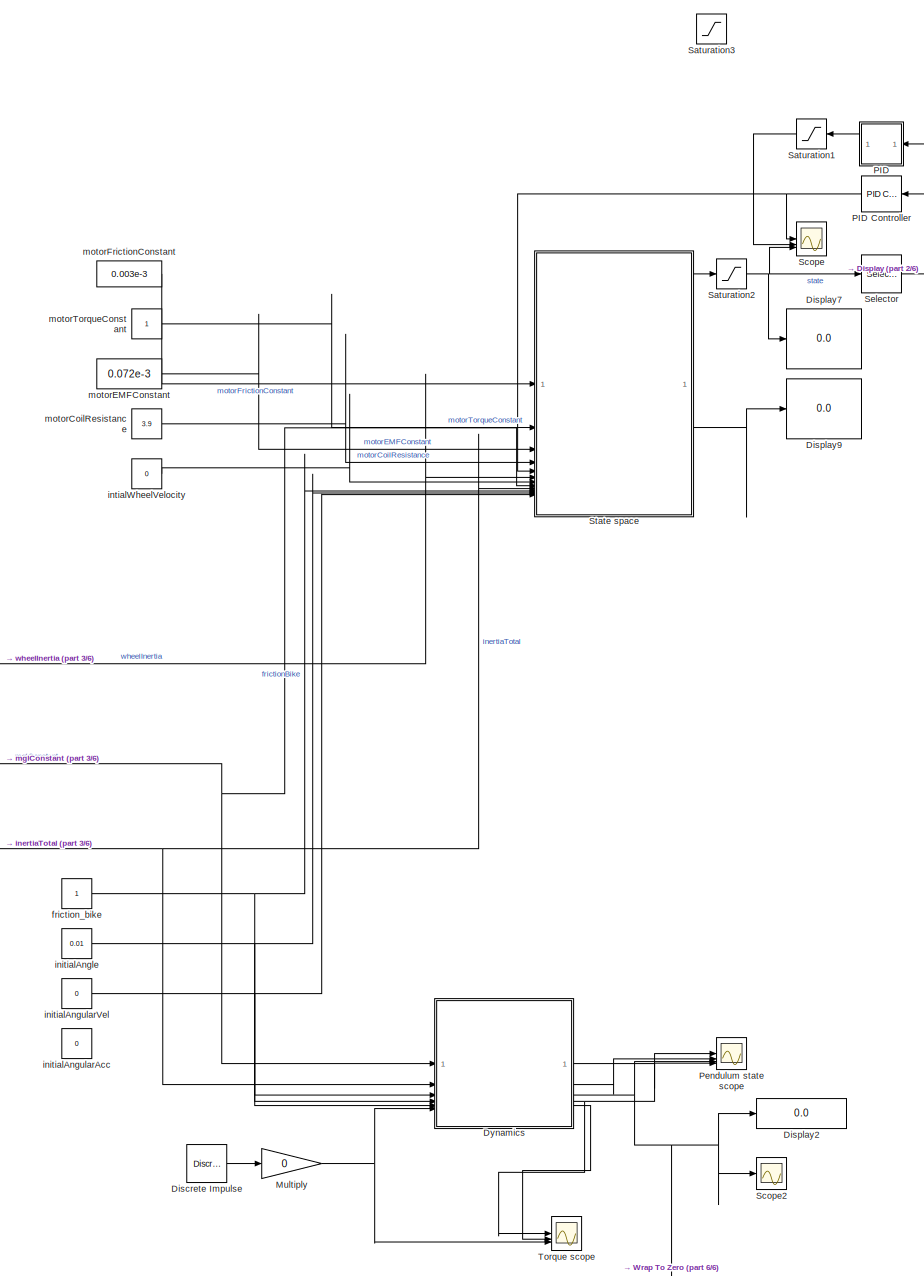
[diagram: root canvas - part 1/6, center side, full height]
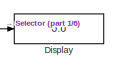
[diagram: root canvas - part 2/6, top right region]
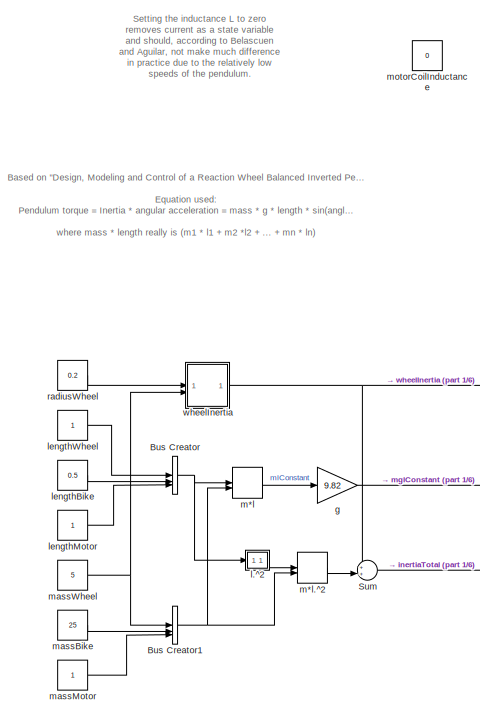
[diagram: root canvas - part 3/6, central region]
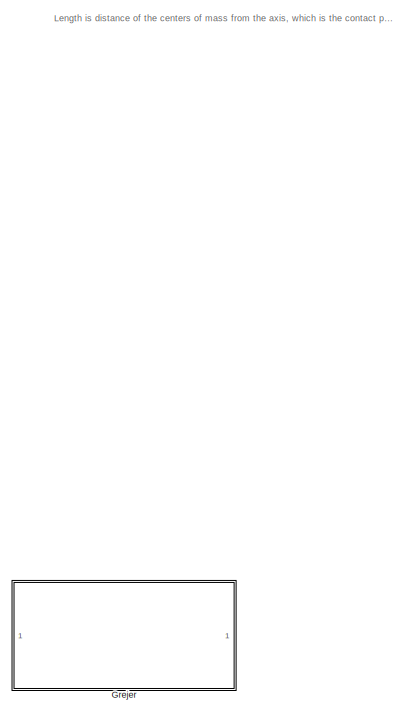
[diagram: root canvas - part 4/6, middle left region]
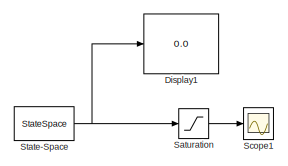
[diagram: root canvas - part 5/6, bottom right region]
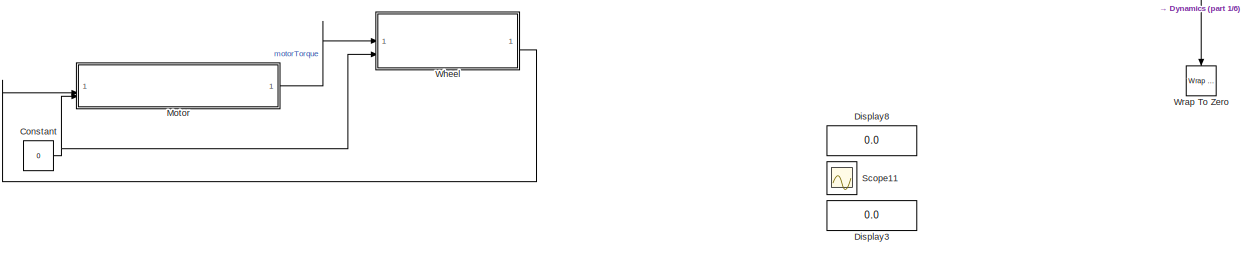
[diagram: root canvas - part 6/6, bottom center region]
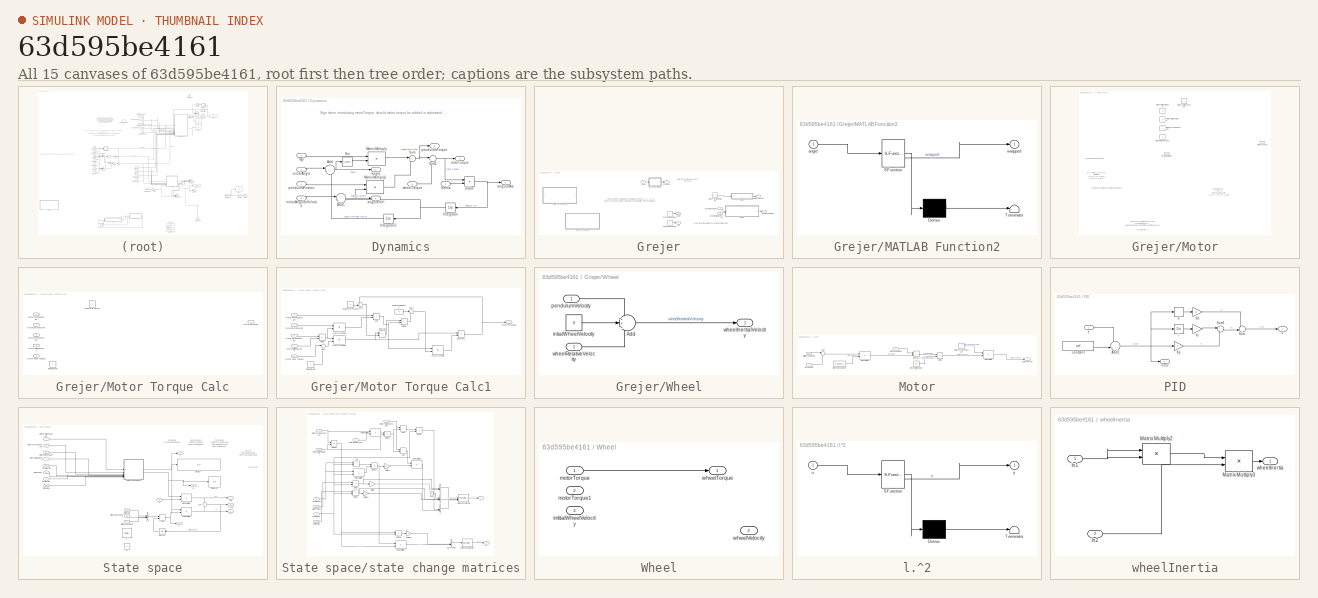
[diagram: thumbnail index - all 15 canvases of the model, root first then tree order]
MODEL slx_63d595be4161
KIND model
CONFIG AbsTol = auto
CONFIG EnableMultiTasking = off
CONFIG FixedStep = auto
CONFIG MaxStep = auto
CONFIG MinStep = auto
CONFIG RelTol = 1e-3
CONFIG SampleTimeConstraint = Unconstrained
CONFIG SolverName = VariableStepAuto
CONFIG StartTime = 0.0
CONFIG StopTime = 60
BLOCK [BusCreator] Bus Creator
  DisplayOption = bar
  InheritFromInputs = on
  Inputs = 3
BLOCK [BusCreator] Bus Creator1
  DisplayOption = bar
  InheritFromInputs = on
  Inputs = 3
BLOCK [Constant] Constant
  Commented = on
  Value = 0
BLOCK [Reference] Discrete Impulse  REF=dspsrcs4/Discrete 
Impulse
  SourceBlock = dspsrcs4/Discrete \nImpulse
  SourceType = Discrete Impulse
BLOCK [Display] Display
  Decimation = 1
BLOCK [Display] Display1
  Decimation = 1
BLOCK [Display] Display2
  Decimation = 1
BLOCK [Display] Display3
  Decimation = 1
  NameLocation = top
BLOCK [Display] Display7
  Decimation = 1
BLOCK [Display] Display8
  Decimation = 1
  NameLocation = top
BLOCK [Display] Display9
  Decimation = 1
BLOCK [SubSystem] Dynamics
BLOCK [Sum] Dynamics/Add
  Inputs = |++
BLOCK [Sum] Dynamics/Add1
  Inputs = |++
BLOCK [Product] Dynamics/Divide
  Inputs = */
BLOCK [Inport] Dynamics/Inertia
  Port = 2
BLOCK [Integrator] Dynamics/Integrator
BLOCK [Integrator] Dynamics/Integrator1
BLOCK [Product] Dynamics/Matrix Multiply
  Multiplication = Matrix(*)
BLOCK [Product] Dynamics/Matrix Multiply1
  Multiplication = Matrix(*)
BLOCK [Trigonometry] Dynamics/Sin
BLOCK [Sum] Dynamics/Sum
  Inputs = |+-
BLOCK [Sum] Dynamics/Sum1
  Inputs = |+-
BLOCK [Outport] Dynamics/angle
  Port = 3
BLOCK [Outport] Dynamics/angularAcc
BLOCK [Outport] Dynamics/angularVel
  Port = 2
BLOCK [Inport] Dynamics/initialAngle
  Port = 4
BLOCK [Inport] Dynamics/initialAngularVelocity
  Port = 5
BLOCK [Inport] Dynamics/mgl
BLOCK [Inport] Dynamics/pendulumFriction
  Port = 3
BLOCK [Outport] Dynamics/pendulumTorque
  Port = 5
BLOCK [Outport] Dynamics/totalTorque
  Port = 4
BLOCK [Inport] Dynamics/wheelTorque
  Port = 6
BLOCK [SubSystem] Grejer
  Commented = on
BLOCK [SubSystem] Grejer/MATLAB Function2
  ErrorFcn = Stateflow.Translate.translate
  LibrarySourceBlock = simulink/User-Defined\nFunctions/MATLAB Function
  PermitHierarchicalResolution = ExplicitOnly
  SFBlockType = MATLAB Function
  TreatAsAtomicUnit = on
BLOCK [Demux] Grejer/MATLAB Function2/ Demux 
  Outputs = 1
BLOCK [S-Function] Grejer/MATLAB Function2/ SFunction 
  EnableBusSupport = on
  FunctionName = sf_sfun
  PortCounts = [1 2]
  SFcnIsStateOwnerBlock = off
  SFunctionDeploymentMode = off
  Tag = Stateflow S-Function 4
BLOCK [Terminator] Grejer/MATLAB Function2/ Terminator 
BLOCK [Inport] Grejer/MATLAB Function2/angle
BLOCK [Outport] Grejer/MATLAB Function2/wrapped
BLOCK [SubSystem] Grejer/Motor
BLOCK [SubSystem] Grejer/Motor Torque Calc
BLOCK [Constant] Grejer/Motor Torque Calc/initialVoltage
  Value = 0
BLOCK [Constant] Grejer/Motor Torque Calc/intialMotorTorque
  Value = 0
BLOCK [Inport] Grejer/Motor Torque Calc/motor input voltage
  NameLocation = top
  Port = 5
BLOCK [Inport] Grejer/Motor Torque Calc/motorCoilResistance
  Port = 4
BLOCK [Inport] Grejer/Motor Torque Calc/motorEMFConstant
  Port = 2
BLOCK [Inport] Grejer/Motor Torque Calc/motorFrictionConstant
BLOCK [Inport] Grejer/Motor Torque Calc/motorTorqueConstant
  Port = 3
BLOCK [Outport] Grejer/Motor Torque Calc/motorTorqueOut
BLOCK [SubSystem] Grejer/Motor Torque Calc1
BLOCK [Sum] Grejer/Motor Torque Calc1/Add1
  IconShape = rectangular
BLOCK [Product] Grejer/Motor Torque Calc1/Divide
  Inputs = */
BLOCK [Product] Grejer/Motor Torque Calc1/Divide1
  Inputs = */
BLOCK [Product] Grejer/Motor Torque Calc1/Matrix Multiply
  Multiplication = Matrix(*)
BLOCK [Product] Grejer/Motor Torque Calc1/Matrix Multiply1
  Multiplication = Matrix(*)
BLOCK [Product] Grejer/Motor Torque Calc1/Matrix Multiply2
  Multiplication = Matrix(*)
BLOCK [Sum] Grejer/Motor Torque Calc1/Subtract
  IconShape = rectangular
  Inputs = +-
BLOCK [Sum] Grejer/Motor Torque Calc1/Subtract1
  IconShape = rectangular
  Inputs = +-
BLOCK [Sum] Grejer/Motor Torque Calc1/Sum
  Inputs = |++
BLOCK [Sum] Grejer/Motor Torque Calc1/Sum1
  Inputs = |++
BLOCK [Sum] Grejer/Motor Torque Calc1/Sum2
  Inputs = ++|
BLOCK [Constant] Grejer/Motor Torque Calc1/initialVoltage
  Value = 0
BLOCK [Constant] Grejer/Motor Torque Calc1/intialMotorTorque
  Value = 0
BLOCK [Constant] Grejer/Motor Torque Calc1/intialWheelVelocity2
  Value = 0
BLOCK [Inport] Grejer/Motor Torque Calc1/motor input voltage
  NameLocation = top
  Port = 5
BLOCK [Inport] Grejer/Motor Torque Calc1/motorCoilResistance
  Port = 4
BLOCK [Inport] Grejer/Motor Torque Calc1/motorEMFConstant
  Port = 2
BLOCK [Inport] Grejer/Motor Torque Calc1/motorFrictionConstant
BLOCK [Inport] Grejer/Motor Torque Calc1/motorTorqueConstant
  Port = 3
BLOCK [Outport] Grejer/Motor Torque Calc1/motorTorqueOut
BLOCK [Constant] Grejer/Motor/motorCoilInductance
BLOCK [Constant] Grejer/Motor/motorCoilResistance
BLOCK [Constant] Grejer/Motor/motorEMFConstant
BLOCK [Constant] Grejer/Motor/motorFrictionConstant
BLOCK [Outport] Grejer/Motor/motorTorque
BLOCK [Constant] Grejer/Motor/motorTorqueConstant
BLOCK [Inport] Grejer/Motor/terminalVoltage
BLOCK [Outport] Grejer/Out4
  Port = 4
BLOCK [Outport] Grejer/Out5
  Port = 5
BLOCK [SubSystem] Grejer/Wheel
BLOCK [Sum] Grejer/Wheel/Add
  Inputs = +++
BLOCK [Constant] Grejer/Wheel/intialWheelVelocity
  Value = 0
BLOCK [Inport] Grejer/Wheel/pendulumVelocity
BLOCK [Outport] Grejer/Wheel/wheelInertialVelocity
BLOCK [Inport] Grejer/Wheel/wheelRelativeVelocity
  Port = 2
BLOCK [Inport] Grejer/angle
BLOCK [Constant] Grejer/innerRadiusWheel
BLOCK [Constant] Grejer/motorTerminalVoltage
BLOCK [Outport] Grejer/motorTorque
  Port = 2
BLOCK [Constant] Grejer/outerRadiusWheel
BLOCK [Inport] Grejer/pendulumVelocity
  Port = 2
BLOCK [Outport] Grejer/wheelInertialVelocity
  Port = 3
BLOCK [Inport] Grejer/wheelRelativeVelocity
  Port = 3
BLOCK [Outport] Grejer/wrapped
BLOCK [SubSystem] Motor
  Commented = on
BLOCK [Product] Motor/Divide
  Inputs = */
BLOCK [Product] Motor/Matrix Multiply
  Multiplication = Matrix(*)
BLOCK [Product] Motor/Matrix Multiply1
  Multiplication = Matrix(*)
BLOCK [Sum] Motor/Subtract
  IconShape = rectangular
  Inputs = +-
BLOCK [Sum] Motor/Sum
  Inputs = |++
BLOCK [Inport] Motor/initialWheelVelocity
  Port = 3
BLOCK [Inport] Motor/motor input voltage
BLOCK [Constant] Motor/motorCoilResistance
  Value = 3.9
BLOCK [Constant] Motor/motorEMFConstant
  Value = 0.072e-3
BLOCK [Outport] Motor/motorTorque
BLOCK [Constant] Motor/motorTorqueConstant
BLOCK [Inport] Motor/wheelVelocity
  NameLocation = top
  Port = 2
BLOCK [Gain] Multiply
  Gain = 0
BLOCK [SubSystem] PID
  NameLocation = top
BLOCK [Reference] PID Controller  REF=slpidlib/PID Controller
  LibrarySourceBlock = simulink/Continuous/PID Controller
  NameLocation = top
  SourceBlock = slpidlib/PID Controller
  SourceType = PID 1dof
BLOCK [Sum] PID/Add2
  Inputs = -+|
BLOCK [Constant] PID/Constant
  Value = ref
BLOCK [Gain] PID/Kd
  Gain = D
BLOCK [Gain] PID/Ki
  Gain = I
BLOCK [Gain] PID/Kp
  Gain = P
BLOCK [Sum] PID/Sum
  Inputs = --|
BLOCK [Sum] PID/Sum1
  Inputs = |++
BLOCK [Derivative] PID/d
BLOCK [Outport] PID/error
  Port = 2
BLOCK [Integrator] PID/i
BLOCK [Outport] PID/u
BLOCK [Inport] PID/y
BLOCK [Scope] Pendulum state scope
  Floating = off
  NumInputPorts = 4
  ScopeSpecificationString = Simulink.scopes.TimeScopeBlockCfg('CurrentConfiguration', extmgr.ConfigurationSet(extmgr.Configuration('Core','General UI',true),extmgr.Configuration('Core','Source UI',true),extmgr.Configuration('Sources','WiredSimulink',true,'DataLoggingVariableName','ScopeData4'),extmgr.Configuration('Visuals','Time Domain',true,'SerializedDisplays',{struct('MinYLimReal','-233.27651','MaxYLimReal','232.78777','...<+1623ch>
BLOCK [Saturate] Saturation
  LowerLimit = -1000
  UpperLimit = 1000
BLOCK [Saturate] Saturation1
  LowerLimit = -24
  NameLocation = top
  UpperLimit = 24
BLOCK [Saturate] Saturation2
  LowerLimit = -10000
  UpperLimit = 10000
BLOCK [Saturate] Saturation3
  LowerLimit = -24
  NameLocation = top
  UpperLimit = 24
BLOCK [Scope] Scope
  Floating = off
  NumInputPorts = 3
  ScopeSpecificationString = Simulink.scopes.TimeScopeBlockCfg('CurrentConfiguration', extmgr.ConfigurationSet(extmgr.Configuration('Core','General UI',true),extmgr.Configuration('Core','Source UI',true),extmgr.Configuration('Sources','WiredSimulink',true,'DataLoggingVariableName','ScopeData1'),extmgr.Configuration('Visuals','Time Domain',true,'SerializedDisplays',{struct('MinYLimReal','-1339.28571','MaxYLimReal','704.36508',...<+1597ch>
BLOCK [Scope] Scope1
  Floating = off
  NumInputPorts = 1
  ScopeSpecificationString = Simulink.scopes.TimeScopeBlockCfg('CurrentConfiguration', extmgr.ConfigurationSet(extmgr.Configuration('Core','General UI',true),extmgr.Configuration('Core','Source UI',true),extmgr.Configuration('Sources','WiredSimulink',true,'DataLoggingVariableName','ScopeData2'),extmgr.Configuration('Visuals','Time Domain',true,'SerializedDisplays',{struct('MinYLimReal','-1250.00000','MaxYLimReal','1250.00000'...<+1537ch>
BLOCK [Scope] Scope11
  Floating = off
  NameLocation = top
  NumInputPorts = 2
  ScopeSpecificationString = Simulink.scopes.TimeScopeBlockCfg('CurrentConfiguration', extmgr.ConfigurationSet(extmgr.Configuration('Core','General UI',true),extmgr.Configuration('Core','Source UI',true),extmgr.Configuration('Sources','WiredSimulink',true,'DataLoggingVariableName','ScopeData6'),extmgr.Configuration('Visuals','Time Domain',true,'SerializedDisplays',{struct('MinYLimReal','-6.91203','MaxYLimReal','-0.62354','YLa...<+1478ch>
BLOCK [Scope] Scope2
  Floating = off
  NumInputPorts = 1
  ScopeSpecificationString = Simulink.scopes.TimeScopeBlockCfg('CurrentConfiguration', extmgr.ConfigurationSet(extmgr.Configuration('Core','General UI',true),extmgr.Configuration('Core','Source UI',true),extmgr.Configuration('Sources','WiredSimulink',true,'DataLoggingVariableName','ScopeData1'),extmgr.Configuration('Visuals','Time Domain',true,'SerializedDisplays',{struct('MinYLimReal','-1250.00000','MaxYLimReal','1250.00000'...<+1537ch>
BLOCK [Selector] Selector
  IndexOptions = Index vector (dialog)
  Indices = 1
  InputPortWidth = 3
  OutputSizes = 1
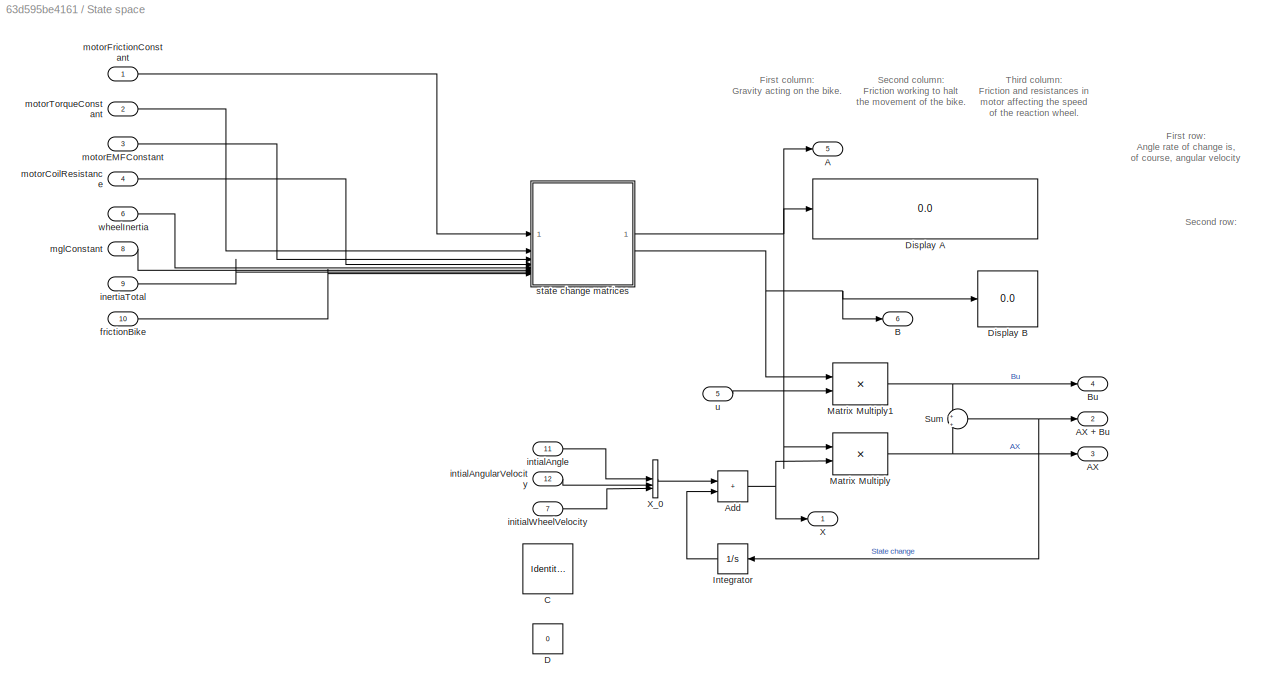
BLOCK [SubSystem] State space
BLOCK [Outport] State space/A
  Port = 5
BLOCK [Outport] State space/AX
  Port = 3
BLOCK [Outport] State space/AX + Bu
  Port = 2
BLOCK [Sum] State space/Add
  IconShape = rectangular
BLOCK [Outport] State space/B
  Port = 6
BLOCK [Outport] State space/Bu
  Port = 4
BLOCK [IdentityMatrix] State space/C
  OutputDimensions = 3
BLOCK [Constant] State space/D
  Value = 0
BLOCK [Display] State space/Display A
  Decimation = 1
BLOCK [Display] State space/Display B
  Decimation = 1
BLOCK [Integrator] State space/Integrator
BLOCK [Product] State space/Matrix Multiply
  Multiplication = Matrix(*)
BLOCK [Product] State space/Matrix Multiply1
  Multiplication = Matrix(*)
BLOCK [Sum] State space/Sum
  Inputs = +|+
BLOCK [Outport] State space/X
BLOCK [BusCreator] State space/X_0
  DisplayOption = bar
  InheritFromInputs = on
  Inputs = 3
BLOCK [Inport] State space/frictionBike
  Port = 10
BLOCK [Inport] State space/inertiaTotal
  Port = 9
BLOCK [Inport] State space/initialWheelVelocity
  Port = 7
BLOCK [Inport] State space/intialAngle
  Port = 11
BLOCK [Inport] State space/intialAngularVelocity
  Port = 12
BLOCK [Inport] State space/mglConstant
  Port = 8
BLOCK [Inport] State space/motorCoilResistance
  Port = 4
BLOCK [Inport] State space/motorEMFConstant
  Port = 3
BLOCK [Inport] State space/motorFrictionConstant
BLOCK [Inport] State space/motorTorqueConstant
  Port = 2
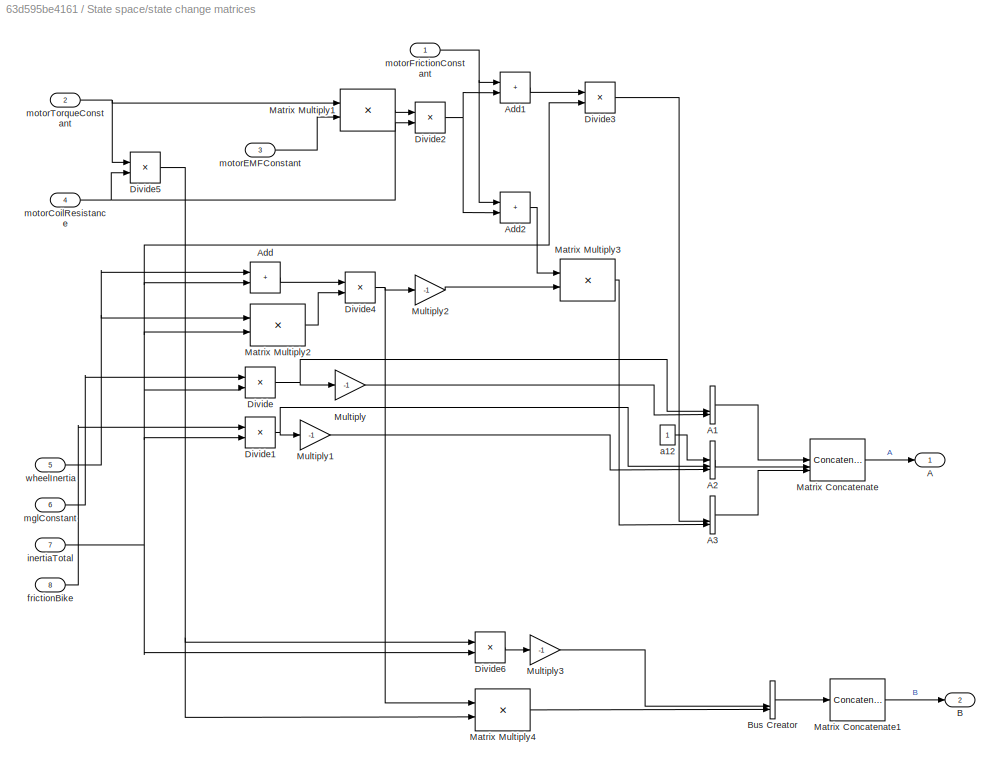
BLOCK [SubSystem] State space/state change matrices
BLOCK [Outport] State space/state change matrices/A
BLOCK [BusCreator] State space/state change matrices/A1
  DisplayOption = bar
  InheritFromInputs = on
  Inputs = 3
BLOCK [BusCreator] State space/state change matrices/A2
  DisplayOption = bar
  InheritFromInputs = on
  Inputs = 3
BLOCK [BusCreator] State space/state change matrices/A3
  DisplayOption = bar
  InheritFromInputs = on
  Inputs = 3
BLOCK [Sum] State space/state change matrices/Add
  IconShape = rectangular
BLOCK [Sum] State space/state change matrices/Add1
  IconShape = rectangular
BLOCK [Sum] State space/state change matrices/Add2
  IconShape = rectangular
BLOCK [Outport] State space/state change matrices/B
  Port = 2
BLOCK [BusCreator] State space/state change matrices/Bus Creator
  DisplayOption = bar
  InheritFromInputs = on
  Inputs = 3
BLOCK [Product] State space/state change matrices/Divide
  Inputs = */
BLOCK [Product] State space/state change matrices/Divide1
  Inputs = */
BLOCK [Product] State space/state change matrices/Divide2
  Inputs = */
BLOCK [Product] State space/state change matrices/Divide3
  Inputs = */
BLOCK [Product] State space/state change matrices/Divide4
  Inputs = */
BLOCK [Product] State space/state change matrices/Divide5
  Inputs = */
BLOCK [Product] State space/state change matrices/Divide6
  Inputs = */
BLOCK [Concatenate] State space/state change matrices/Matrix Concatenate
  ConcatenateDimension = 2
  Mode = Multidimensional array
  NumInputs = 3
BLOCK [Concatenate] State space/state change matrices/Matrix Concatenate1
  ConcatenateDimension = 2
  Mode = Multidimensional array
  NumInputs = 1
BLOCK [Product] State space/state change matrices/Matrix Multiply1
  Multiplication = Matrix(*)
BLOCK [Product] State space/state change matrices/Matrix Multiply2
  Multiplication = Matrix(*)
BLOCK [Product] State space/state change matrices/Matrix Multiply3
  Multiplication = Matrix(*)
BLOCK [Product] State space/state change matrices/Matrix Multiply4
  Multiplication = Matrix(*)
BLOCK [Gain] State space/state change matrices/Multiply
  Gain = -1
BLOCK [Gain] State space/state change matrices/Multiply1
  Gain = -1
BLOCK [Gain] State space/state change matrices/Multiply2
  Gain = -1
BLOCK [Gain] State space/state change matrices/Multiply3
  Gain = -1
BLOCK [Constant] State space/state change matrices/a12
BLOCK [Inport] State space/state change matrices/frictionBike
  Port = 8
BLOCK [Inport] State space/state change matrices/inertiaTotal
  Port = 7
BLOCK [Inport] State space/state change matrices/mglConstant
  Port = 6
BLOCK [Inport] State space/state change matrices/motorCoilResistance
  Port = 4
BLOCK [Inport] State space/state change matrices/motorEMFConstant
  Port = 3
BLOCK [Inport] State space/state change matrices/motorFrictionConstant
BLOCK [Inport] State space/state change matrices/motorTorqueConstant
  Port = 2
BLOCK [Inport] State space/state change matrices/wheelInertia
  Port = 5
BLOCK [Inport] State space/u
  Port = 5
BLOCK [Inport] State space/wheelInertia
  Port = 6
BLOCK [StateSpace] State-Space
  A = [0 1 0; 14.59 0.4016 0.08032; -14.59 -0.4016 -5.08]
  B = [0;-0.0206;1.303]
  C = eye(3)
  D = [0;0;0]
  InitialCondition = [0.00;0;0]
BLOCK [Sum] Sum
  Inputs = ++|
BLOCK [Scope] Torque scope
  Floating = off
  NumInputPorts = 3
  ScopeSpecificationString = Simulink.scopes.TimeScopeBlockCfg('CurrentConfiguration', extmgr.ConfigurationSet(extmgr.Configuration('Core','General UI',true),extmgr.Configuration('Core','Source UI',true),extmgr.Configuration('Sources','WiredSimulink',true,'DataLoggingVariableName','ScopeData1'),extmgr.Configuration('Visuals','Time Domain',true,'SerializedDisplays',{struct('MinYLimReal','-236.60931','MaxYLimReal','235.29943','...<+1551ch>
BLOCK [SubSystem] Wheel
  Commented = on
BLOCK [Inport] Wheel/intitialWheelVelocity
  Port = 3
BLOCK [Inport] Wheel/motorTorque
BLOCK [Inport] Wheel/motorTorque1
  Port = 2
BLOCK [Outport] Wheel/wheelTorque
BLOCK [Outport] Wheel/wheelVelocity
  Port = 2
BLOCK [Reference] Wrap To Zero  REF=simulink/Discontinuities/Wrap To Zero
  NameLocation = left
  SourceBlock = simulink/Discontinuities/Wrap To Zero
  SourceType = Wrap To Zero
BLOCK [Constant] friction_bike
BLOCK [Gain] g
  Gain = 9.82
BLOCK [Constant] initialAngle
  Value = 0.01
BLOCK [Constant] initialAngularAcc
  Value = 0
BLOCK [Constant] initialAngularVel
  Value = 0
BLOCK [Constant] intialWheelVelocity
  Value = 0
BLOCK [SubSystem] l.^2
  ErrorFcn = Stateflow.Translate.translate
  LibrarySourceBlock = simulink/User-Defined\nFunctions/MATLAB Function
  PermitHierarchicalResolution = ExplicitOnly
  SFBlockType = MATLAB Function
  TreatAsAtomicUnit = on
BLOCK [Demux] l.^2/ Demux 
  Outputs = 1
BLOCK [S-Function] l.^2/ SFunction 
  EnableBusSupport = on
  FunctionName = sf_sfun
  PortCounts = [1 2]
  SFcnIsStateOwnerBlock = off
  SFunctionDeploymentMode = off
  Tag = Stateflow S-Function 2
BLOCK [Terminator] l.^2/ Terminator 
BLOCK [Inport] l.^2/u
BLOCK [Outport] l.^2/y
BLOCK [Constant] lengthBike
  Value = 0.5
BLOCK [Constant] lengthMotor
BLOCK [Constant] lengthWheel
BLOCK [DotProduct] m*l
  OutDataTypeStr = Inherit: Inherit via internal rule
BLOCK [DotProduct] m*l.^2
  OutDataTypeStr = Inherit: Inherit via internal rule
BLOCK [Constant] massBike
  Value = 25
BLOCK [Constant] massMotor
BLOCK [Constant] massWheel
  Value = 5
BLOCK [Constant] motorCoilInductance
  Commented = on
  Value = 0
BLOCK [Constant] motorCoilResistance
  Value = 3.9
BLOCK [Constant] motorEMFConstant
  Value = 0.072e-3
BLOCK [Constant] motorFrictionConstant
  Value = 0.003e-3
BLOCK [Constant] motorTorqueConstant
BLOCK [Constant] radiusWheel
  Value = 0.2
BLOCK [SubSystem] wheelInertia
BLOCK [Inport] wheelInertia/In1
BLOCK [Inport] wheelInertia/In2
  Port = 2
BLOCK [Product] wheelInertia/Matrix Multiply2
  Multiplication = Matrix(*)
BLOCK [Product] wheelInertia/Matrix Multiply3
  Multiplication = Matrix(*)
BLOCK [Outport] wheelInertia/wheelInertia
ANNOTATION (root): Based on "Design, Modeling and Control of a Reaction Wheel Balanced Inverted Pendulum" by Gonzalo Belascuen and Nahuel Aguilar, available at IEEE Xplore. Equation used: Pendulum torque = Inertia * angular acceleration = mass * g * length * sin(angle) - k_friction * angular velocity - motor torque where mass * length really is (m1 * l1 + m2 *l2 + ... + mn * ln) For linearization around angle = 0, s...<+18ch>
ANNOTATION (root): Length is distance of the centers of mass from the axis, which is the contact point with the ground (for a bike, there is no ground in this simulation).
ANNOTATION (root): Setting the inductance L to zero removes current as a state variable and should, according to Belascuen and Aguilar, not make much difference in practice due to the relatively low speeds of the pendulum.
ANNOTATION Dynamics: Sign when introducing motorTorque; should motor torque be added or subtracted. Original equation says subtracted, but if same direction it should add torque, right? No, the pendulum is affected by the equal but opposite torque caused when the wheel has a certain torque, as Newton's third law states.
ANNOTATION Grejer: TODO: Look at more detailed wheel-simulation. I_wheel = m(r_2-r_1)^2 / 2 Would probably be part of Dynamics/motor drive simulation rather than the fixed mass/inertia.
ANNOTATION Grejer: The terminal voltage will be the controlling input to the motor
ANNOTATION Grejer: Will probably set inductance to 0. Maybe not.
ANNOTATION Grejer/Motor: I_wheel · dω_Inertial/dt = motorTorque ω_Inertial = dθ/dt + ω_R ω_R is wheel angular velocity with respect to pendulum.
ANNOTATION Grejer/Motor: R · i + L · di/dt = u(t) − ke · ω_R Simplified to R · i = u(t) − ke · ω_R and i = (u(t) − ke · ω_R) / R
ANNOTATION Grejer/Motor: electric torque: τ_e = k_t · i wich should become τ_e = k_t · ( (u(t) − ke · ω_R) / R)
ANNOTATION Grejer/Motor: ω_Inertial : wheel inertial speed
ANNOTATION Grejer/Motor: ω_R : wheel speed with respect to pendulum arm
ANNOTATION Grejer/Motor: ω_R = ωInertial − ˙θ
ANNOTATION State space: First column: Gravity acting on the bike.
ANNOTATION State space: First row: Angle rate of change is, of course, angular velocity
ANNOTATION State space: Second column: Friction working to halt the movement of the bike.
ANNOTATION State space: Second row:
ANNOTATION State space: Third column: Friction and resistances in motor affecting the speed of the reaction wheel.
NET Bus Creator1:1 -> m*l.^2:2, m*l:2
NET Bus Creator:1 -> l.^2:1, m*l:1
NET Constant:1 -> Motor:3, Wheel:3
LINE Discrete Impulse:1 -> Multiply:1
NET Dynamics/Add1:1 -> Dynamics/Matrix Multiply1:2, Dynamics/angularVel:1
NET Dynamics/Add:1 -> Dynamics/Sin:1, Dynamics/angle:1
NET Dynamics/Divide:1 -> Dynamics/Integrator:1, Dynamics/angularAcc:1
LINE Dynamics/Inertia:1 -> Dynamics/Divide:2
LINE Dynamics/Integrator1:1 -> Dynamics/Add:2
NET Dynamics/Integrator:1 -> Dynamics/Add1:2, Dynamics/Integrator1:1
LINE Dynamics/Matrix Multiply1:1 -> Dynamics/Sum:2
LINE Dynamics/Matrix Multiply:1 -> Dynamics/Sum:1
LINE Dynamics/Sin:1 -> Dynamics/Matrix Multiply:2
NET Dynamics/Sum1:1 -> Dynamics/Divide:1, Dynamics/totalTorque:1
NET Dynamics/Sum:1 -> Dynamics/Sum1:1, Dynamics/pendulumTorque:1
LINE Dynamics/initialAngle:1 -> Dynamics/Add:1
LINE Dynamics/initialAngularVelocity:1 -> Dynamics/Add1:1
LINE Dynamics/mgl:1 -> Dynamics/Matrix Multiply:1
LINE Dynamics/pendulumFriction:1 -> Dynamics/Matrix Multiply1:1
LINE Dynamics/wheelTorque:1 -> Dynamics/Sum1:2
LINE Dynamics:1 -> Pendulum state scope:1
LINE Dynamics:2 -> Pendulum state scope:2
NET Dynamics:3 -> Display2:1, Pendulum state scope:3, Scope2:1, Wrap To Zero:1
NET Dynamics:4 -> Pendulum state scope:4, Torque scope:1
LINE Dynamics:5 -> Torque scope:2
LINE Grejer/MATLAB Function2:1 -> Grejer/wrapped:1
NET Grejer/Motor Torque Calc1/Add1:1 -> Grejer/Motor Torque Calc1/Divide1:2, Grejer/Motor Torque Calc1/Matrix Multiply:1
LINE Grejer/Motor Torque Calc1/Divide1:1 -> Grejer/Motor Torque Calc1/Sum1:2
NET Grejer/Motor Torque Calc1/Divide:1 -> Grejer/Motor Torque Calc1/Matrix Multiply1:1, Grejer/Motor Torque Calc1/Matrix Multiply2:2
NET Grejer/Motor Torque Calc1/Matrix Multiply1:1 -> Grejer/Motor Torque Calc1/Subtract1:1, Grejer/Motor Torque Calc1/Subtract:1
LINE Grejer/Motor Torque Calc1/Matrix Multiply2:1 -> Grejer/Motor Torque Calc1/Add1:2
LINE Grejer/Motor Torque Calc1/Matrix Multiply:1 -> Grejer/Motor Torque Calc1/Subtract1:2
NET Grejer/Motor Torque Calc1/Subtract1:1 -> Grejer/Motor Torque Calc1/Sum2:1, Grejer/Motor Torque Calc1/motorTorqueOut:1
LINE Grejer/Motor Torque Calc1/Subtract:1 -> Grejer/Motor Torque Calc1/Divide1:1
LINE Grejer/Motor Torque Calc1/Sum1:1 -> Grejer/Motor Torque Calc1/Matrix Multiply:2
LINE Grejer/Motor Torque Calc1/Sum2:1 -> Grejer/Motor Torque Calc1/Subtract:2
LINE Grejer/Motor Torque Calc1/Sum:1 -> Grejer/Motor Torque Calc1/Matrix Multiply1:2
LINE Grejer/Motor Torque Calc1/initialVoltage:1 -> Grejer/Motor Torque Calc1/Sum:2
LINE Grejer/Motor Torque Calc1/intialMotorTorque:1 -> Grejer/Motor Torque Calc1/Sum2:2
LINE Grejer/Motor Torque Calc1/intialWheelVelocity2:1 -> Grejer/Motor Torque Calc1/Sum1:1
LINE Grejer/Motor Torque Calc1/motor input voltage:1 -> Grejer/Motor Torque Calc1/Sum:1
LINE Grejer/Motor Torque Calc1/motorCoilResistance:1 -> Grejer/Motor Torque Calc1/Divide:2
LINE Grejer/Motor Torque Calc1/motorEMFConstant:1 -> Grejer/Motor Torque Calc1/Matrix Multiply2:1
LINE Grejer/Motor Torque Calc1/motorFrictionConstant:1 -> Grejer/Motor Torque Calc1/Add1:1
LINE Grejer/Motor Torque Calc1/motorTorqueConstant:1 -> Grejer/Motor Torque Calc1/Divide:1
LINE Grejer/Motor:1 -> Grejer/motorTorque:1
LINE Grejer/Wheel/Add:1 -> Grejer/Wheel/wheelInertialVelocity:1
LINE Grejer/Wheel/intialWheelVelocity:1 -> Grejer/Wheel/Add:2
LINE Grejer/Wheel/pendulumVelocity:1 -> Grejer/Wheel/Add:1
LINE Grejer/Wheel/wheelRelativeVelocity:1 -> Grejer/Wheel/Add:3
LINE Grejer/Wheel:1 -> Grejer/wheelInertialVelocity:1
LINE Grejer/angle:1 -> Grejer/MATLAB Function2:1
LINE Grejer/innerRadiusWheel:1 -> Grejer/Out4:1
LINE Grejer/motorTerminalVoltage:1 -> Grejer/Motor:1
LINE Grejer/outerRadiusWheel:1 -> Grejer/Out5:1
LINE Grejer/pendulumVelocity:1 -> Grejer/Wheel:1
LINE Grejer/wheelRelativeVelocity:1 -> Grejer/Wheel:2
LINE Motor/Divide:1 -> Motor/Matrix Multiply:2
LINE Motor/Matrix Multiply1:1 -> Motor/Subtract:2
LINE Motor/Matrix Multiply:1 -> Motor/motorTorque:1
LINE Motor/Subtract:1 -> Motor/Divide:1
LINE Motor/Sum:1 -> Motor/Matrix Multiply1:1
LINE Motor/initialWheelVelocity:1 -> Motor/Sum:1
LINE Motor/motor input voltage:1 -> Motor/Subtract:1
LINE Motor/motorCoilResistance:1 -> Motor/Divide:2
LINE Motor/motorEMFConstant:1 -> Motor/Matrix Multiply1:2
LINE Motor/motorTorqueConstant:1 -> Motor/Matrix Multiply:1
LINE Motor/wheelVelocity:1 -> Motor/Sum:2
LINE Motor:1 -> Wheel:1
NET Multiply:1 -> Dynamics:6, Torque scope:3
NET PID Controller:1 -> Scope:1, State space:5
NET PID/Add2:1 -> PID/Kp:1, PID/d:1, PID/error:1, PID/i:1
LINE PID/Constant:1 -> PID/Add2:2
LINE PID/Kd:1 -> PID/Sum:1
LINE PID/Ki:1 -> PID/Sum1:1
LINE PID/Kp:1 -> PID/Sum1:2
LINE PID/Sum1:1 -> PID/Sum:2
LINE PID/Sum:1 -> PID/u:1
LINE PID/d:1 -> PID/Kd:1
LINE PID/i:1 -> PID/Ki:1
LINE PID/y:1 -> PID/Add2:1
LINE PID:1 -> Saturation1:1
LINE Saturation1:1 -> Scope:2
NET Saturation2:1 -> Display7:1, Scope:3, Selector:1
LINE Saturation:1 -> Scope1:1
NET Selector:1 -> Display:1, PID Controller:1, PID:1
NET State space/Add:1 -> State space/Matrix Multiply:2, State space/X:1
LINE State space/Integrator:1 -> State space/Add:2
NET State space/Matrix Multiply1:1 -> State space/Bu:1, State space/Sum:1
NET State space/Matrix Multiply:1 -> State space/AX:1, State space/Sum:2
NET State space/Sum:1 -> State space/AX + Bu:1, State space/Integrator:1
LINE State space/X_0:1 -> State space/Add:1
LINE State space/frictionBike:1 -> State space/state change matrices:8
LINE State space/inertiaTotal:1 -> State space/state change matrices:7
LINE State space/initialWheelVelocity:1 -> State space/X_0:3
LINE State space/intialAngle:1 -> State space/X_0:1
LINE State space/intialAngularVelocity:1 -> State space/X_0:2
LINE State space/mglConstant:1 -> State space/state change matrices:6
LINE State space/motorCoilResistance:1 -> State space/state change matrices:4
LINE State space/motorEMFConstant:1 -> State space/state change matrices:3
LINE State space/motorFrictionConstant:1 -> State space/state change matrices:1
LINE State space/motorTorqueConstant:1 -> State space/state change matrices:2
LINE State space/state change matrices/A1:1 -> State space/state change matrices/Matrix Concatenate:1
LINE State space/state change matrices/A2:1 -> State space/state change matrices/Matrix Concatenate:2
LINE State space/state change matrices/A3:1 -> State space/state change matrices/Matrix Concatenate:3
LINE State space/state change matrices/Add1:1 -> State space/state change matrices/Divide3:1
LINE State space/state change matrices/Add2:1 -> State space/state change matrices/Matrix Multiply3:1
LINE State space/state change matrices/Add:1 -> State space/state change matrices/Divide4:1
LINE State space/state change matrices/Bus Creator:1 -> State space/state change matrices/Matrix Concatenate1:1
NET State space/state change matrices/Divide1:1 -> State space/state change matrices/A2:2, State space/state change matrices/Multiply1:1
NET State space/state change matrices/Divide2:1 -> State space/state change matrices/Add1:2, State space/state change matrices/Add2:2
LINE State space/state change matrices/Divide3:1 -> State space/state change matrices/A3:2
NET State space/state change matrices/Divide4:1 -> State space/state change matrices/Matrix Multiply4:1, State space/state change matrices/Multiply2:1
NET State space/state change matrices/Divide5:1 -> State space/state change matrices/Divide6:1, State space/state change matrices/Matrix Multiply4:2
LINE State space/state change matrices/Divide6:1 -> State space/state change matrices/Multiply3:1
NET State space/state change matrices/Divide:1 -> State space/state change matrices/A1:2, State space/state change matrices/Multiply:1
LINE State space/state change matrices/Matrix Concatenate1:1 -> State space/state change matrices/B:1
LINE State space/state change matrices/Matrix Concatenate:1 -> State space/state change matrices/A:1
LINE State space/state change matrices/Matrix Multiply1:1 -> State space/state change matrices/Divide2:1
LINE State space/state change matrices/Matrix Multiply2:1 -> State space/state change matrices/Divide4:2
LINE State space/state change matrices/Matrix Multiply3:1 -> State space/state change matrices/A3:3
LINE State space/state change matrices/Matrix Multiply4:1 -> State space/state change matrices/Bus Creator:3
LINE State space/state change matrices/Multiply1:1 -> State space/state change matrices/A2:3
LINE State space/state change matrices/Multiply2:1 -> State space/state change matrices/Matrix Multiply3:2
LINE State space/state change matrices/Multiply3:1 -> State space/state change matrices/Bus Creator:2
LINE State space/state change matrices/Multiply:1 -> State space/state change matrices/A1:3
LINE State space/state change matrices/a12:1 -> State space/state change matrices/A2:1
LINE State space/state change matrices/frictionBike:1 -> State space/state change matrices/Divide1:1
NET State space/state change matrices/inertiaTotal:1 -> State space/state change matrices/Add:2, State space/state change matrices/Divide1:2, State space/state change matrices/Divide3:2, State space/state change matrices/Divide6:2, State space/state change matrices/Divide:2, State space/state change matrices/Matrix Multiply2:2
LINE State space/state change matrices/mglConstant:1 -> State space/state change matrices/Divide:1
NET State space/state change matrices/motorCoilResistance:1 -> State space/state change matrices/Divide2:2, State space/state change matrices/Divide5:2
LINE State space/state change matrices/motorEMFConstant:1 -> State space/state change matrices/Matrix Multiply1:2
NET State space/state change matrices/motorFrictionConstant:1 -> State space/state change matrices/Add1:1, State space/state change matrices/Add2:1
NET State space/state change matrices/motorTorqueConstant:1 -> State space/state change matrices/Divide5:1, State space/state change matrices/Matrix Multiply1:1
NET State space/state change matrices/wheelInertia:1 -> State space/state change matrices/Add:1, State space/state change matrices/Matrix Multiply2:1
NET State space/state change matrices:1 -> State space/A:1, State space/Display A:1, State space/Matrix Multiply:1
NET State space/state change matrices:2 -> State space/B:1, State space/Display B:1, State space/Matrix Multiply1:1
LINE State space/u:1 -> State space/Matrix Multiply1:2
LINE State space/wheelInertia:1 -> State space/state change matrices:5
LINE State space:1 -> Saturation2:1
LINE State space:2 -> Display9:1
NET State-Space:1 -> Display1:1, Saturation:1
NET Sum:1 -> Dynamics:2, State space:9
LINE Wheel/motorTorque:1 -> Wheel/wheelTorque:1
LINE Wheel:2 -> Motor:2
NET friction_bike:1 -> Dynamics:3, State space:10
NET g:1 -> Dynamics:1, State space:8
NET initialAngle:1 -> Dynamics:4, State space:11
NET initialAngularVel:1 -> Dynamics:5, State space:12
LINE intialWheelVelocity:1 -> State space:7
LINE l.^2:1 -> m*l.^2:1
LINE lengthBike:1 -> Bus Creator:2
LINE lengthMotor:1 -> Bus Creator:3
LINE lengthWheel:1 -> Bus Creator:1
LINE m*l.^2:1 -> Sum:2
LINE m*l:1 -> g:1
LINE massBike:1 -> Bus Creator1:2
LINE massMotor:1 -> Bus Creator1:3
NET massWheel:1 -> Bus Creator1:1, wheelInertia:2
LINE motorCoilResistance:1 -> State space:4
LINE motorEMFConstant:1 -> State space:3
LINE motorFrictionConstant:1 -> State space:1
LINE motorTorqueConstant:1 -> State space:2
LINE radiusWheel:1 -> wheelInertia:1
NET wheelInertia/In1:1 -> wheelInertia/Matrix Multiply2:1, wheelInertia/Matrix Multiply2:2
LINE wheelInertia/In2:1 -> wheelInertia/Matrix Multiply3:2
LINE wheelInertia/Matrix Multiply2:1 -> wheelInertia/Matrix Multiply3:1
LINE wheelInertia/Matrix Multiply3:1 -> wheelInertia/wheelInertia:1
NET wheelInertia:1 -> State space:6, Sum:1
note: NET lines group one-source signal fan-out (src -> all destinations, sorted); 1:1 wires keep LINE
CHART Grejer/MATLAB Function2 states=1 transitions=1
  STATE_LABEL 'eML_blk_kernel()'
  STATE_LABEL 'SCRIPT:\nfunction wrapped = wrapAngle(angle)\n\nwrapped= wrapToPi(angle);'
CHART l.^2 states=1 transitions=1
  STATE_LABEL 'eML_blk_kernel()'
  STATE_LABEL 'SCRIPT:\nfunction y = fcn(u)\n\ny = u.^2;\n'
CHART  states=0 transitions=0
CHART  states=0 transitions=0
